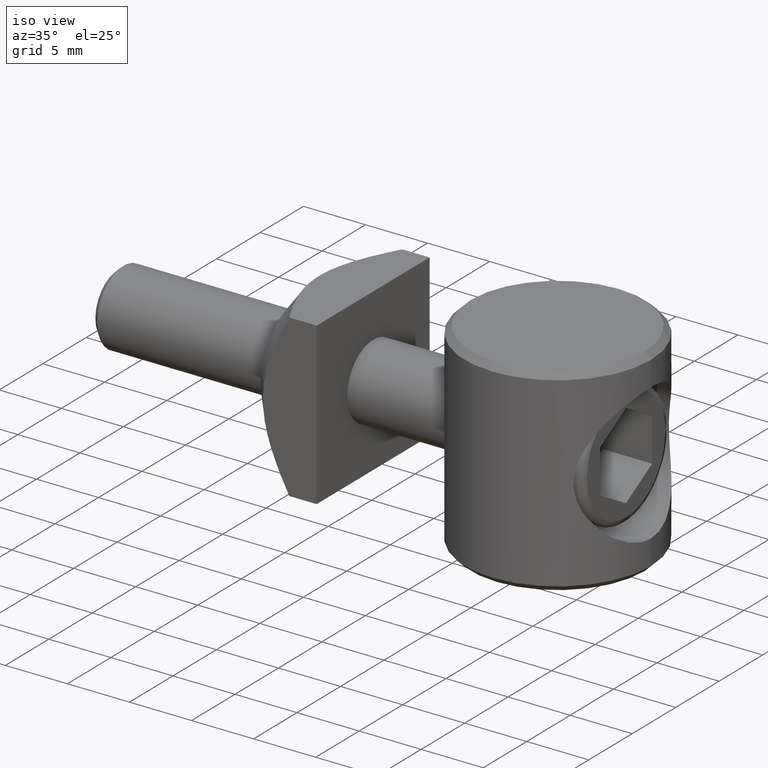
[diagram: clean part render]
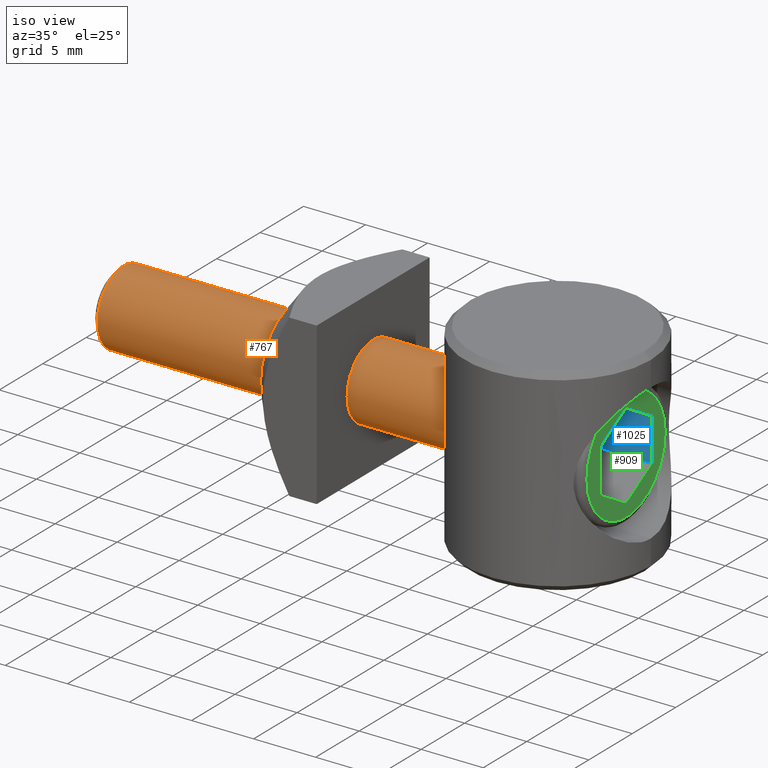
[diagram: same view with three faces highlighted in distinct colors, each labeled with its STEP entity id]
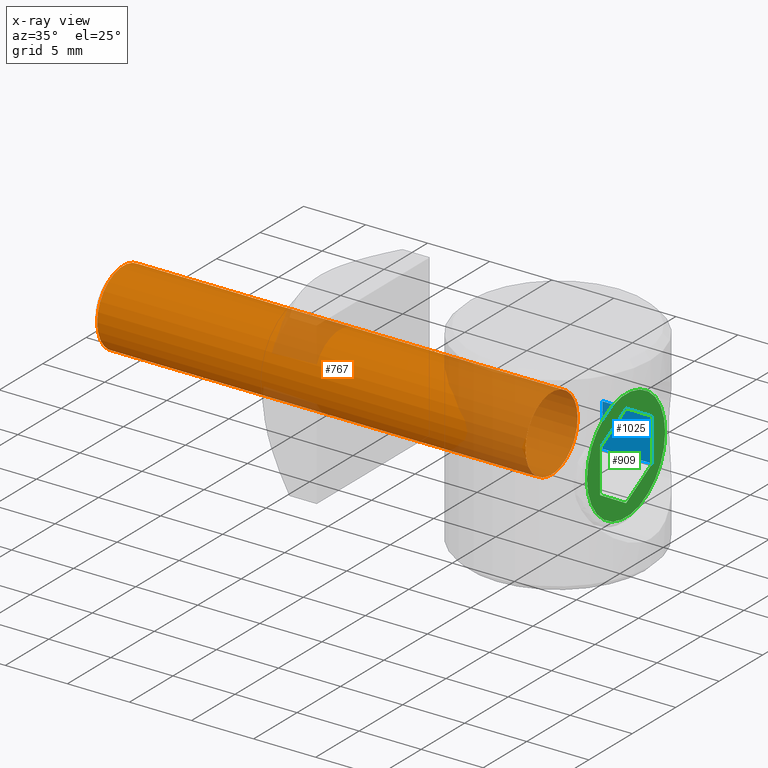
[diagram: x-ray of the same camera — body ghosted, the three highlighted faces saturated]
A machine part, iso view with three faces highlighted in distinct colors.
The next image is the same camera in x-ray (body ghosted, the three faces saturated) — at least one of them is partly hidden behind the body in this view.
Their STEP definitions:

[orange] entity #767 — the highlighted cylindrical surface (bore or boss wall) has radius 3 mm, axis along (1, 0, 0).
#712=CARTESIAN_POINT('',(-0.499999999997726,2.999999999988631,7.999999999968168));
#713=VERTEX_POINT('',#712);
#714=CARTESIAN_POINT('',(-0.499999999997726,-2.999999999987722,7.999999999968168));
#715=VERTEX_POINT('',#714);
#716=CARTESIAN_POINT('',(-0.499999999997726,4.547474E-013,7.999999999968168));
#717=DIRECTION('',(1.0,0.0,0.0));
#718=DIRECTION('',(0.0,1.0,0.0));
#719=AXIS2_PLACEMENT_3D('',#716,#717,#718);
#720=CIRCLE('',#719,2.999999999988177);
#721=EDGE_CURVE('',#713,#715,#720,.T.);
#723=CARTESIAN_POINT('',(-0.499999999997726,4.547474E-013,7.999999999968168));
#724=DIRECTION('',(1.0,0.0,0.0));
#725=DIRECTION('',(0.0,1.0,0.0));
#726=AXIS2_PLACEMENT_3D('',#723,#724,#725);
#727=CIRCLE('',#726,2.999999999988177);
#728=EDGE_CURVE('',#715,#713,#727,.T.);
#733=CARTESIAN_POINT('',(-0.499999999997726,4.547474E-013,7.999999999968168));
#734=DIRECTION('',(1.0,0.0,0.0));
#735=DIRECTION('',(0.0,1.0,0.0));
#736=AXIS2_PLACEMENT_3D('',#733,#734,#735);
#737=CYLINDRICAL_SURFACE('',#736,2.999999999988177);
#738=CARTESIAN_POINT('',(-34.999999999859938,2.999999999988631,7.999999999968168));
#739=VERTEX_POINT('',#738);
#740=CARTESIAN_POINT('',(-0.499999999997726,2.999999999988631,7.999999999968168));
#741=DIRECTION('',(-1.0,0.0,0.0));
#742=VECTOR('',#741,34.499999999862212);
#743=LINE('',#740,#742);
#744=EDGE_CURVE('',#713,#739,#743,.T.);
#745=ORIENTED_EDGE('',*,*,#744,.T.);
#746=CARTESIAN_POINT('',(-34.999999999859938,-2.999999999987722,7.999999999968168));
#747=VERTEX_POINT('',#746);
#748=CARTESIAN_POINT('',(-34.999999999859938,4.547474E-013,7.999999999968168));
#749=DIRECTION('',(1.0,0.0,0.0));
#750=DIRECTION('',(0.0,1.0,0.0));
#751=AXIS2_PLACEMENT_3D('',#748,#749,#750);
#752=CIRCLE('',#751,2.999999999988177);
#753=EDGE_CURVE('',#739,#747,#752,.T.);
#754=ORIENTED_EDGE('',*,*,#753,.T.);
#755=CARTESIAN_POINT('',(-34.999999999859938,4.547474E-013,7.999999999968168));
#756=DIRECTION('',(1.0,0.0,0.0));
#757=DIRECTION('',(0.0,1.0,0.0));
#758=AXIS2_PLACEMENT_3D('',#755,#756,#757);
#759=CIRCLE('',#758,2.999999999988177);
#760=EDGE_CURVE('',#747,#739,#759,.T.);
#761=ORIENTED_EDGE('',*,*,#760,.T.);
#762=ORIENTED_EDGE('',*,*,#744,.F.);
#763=ORIENTED_EDGE('',*,*,#728,.F.);
#764=ORIENTED_EDGE('',*,*,#721,.F.);
#765=EDGE_LOOP('',(#745,#754,#761,#762,#763,#764));
#766=FACE_OUTER_BOUND('',#765,.T.);
#767=ADVANCED_FACE('',(#766),#737,.T.);

[blue] entity #1025 — the highlighted planar face has unit normal (0, -1, 0).
#859=CARTESIAN_POINT('',(5.499999999978172,3.000000000000455,6.267949192399291));
#860=VERTEX_POINT('',#859);
#861=CARTESIAN_POINT('',(5.499999999978172,3.000000000000455,9.732050807537044));
#862=VERTEX_POINT('',#861);
#863=CARTESIAN_POINT('',(5.499999999978172,3.000000000000455,6.267949192399291));
#864=DIRECTION('',(0.0,0.0,1.0));
#865=VECTOR('',#864,3.464101615137754);
#866=LINE('',#863,#865);
#867=EDGE_CURVE('',#860,#862,#866,.T.);
#995=CARTESIAN_POINT('',(5.499999999978172,3.000000000000455,6.267949192399291));
#996=DIRECTION('',(0.0,-1.0,0.0));
#997=DIRECTION('',(0.0,0.0,1.0));
#998=AXIS2_PLACEMENT_3D('',#995,#996,#997);
#999=PLANE('',#998);
#1000=CARTESIAN_POINT('',(1.499999999978172,3.000000000000455,6.267949192399291));
#1001=VERTEX_POINT('',#1000);
#1002=CARTESIAN_POINT('',(5.499999999978172,3.000000000000455,6.267949192399291));
#1003=DIRECTION('',(-1.0,0.0,0.0));
#1004=VECTOR('',#1003,4.0);
#1005=LINE('',#1002,#1004);
#1006=EDGE_CURVE('',#860,#1001,#1005,.T.);
#1007=ORIENTED_EDGE('',*,*,#1006,.F.);
#1008=ORIENTED_EDGE('',*,*,#867,.T.);
#1009=CARTESIAN_POINT('',(1.499999999978172,3.000000000000455,9.732050807537044));
#1010=VERTEX_POINT('',#1009);
#1011=CARTESIAN_POINT('',(5.499999999978172,3.000000000000455,9.732050807537044));
#1012=DIRECTION('',(-1.0,0.0,0.0));
#1013=VECTOR('',#1012,4.0);
#1014=LINE('',#1011,#1013);
#1015=EDGE_CURVE('',#862,#1010,#1014,.T.);
#1016=ORIENTED_EDGE('',*,*,#1015,.T.);
#1017=CARTESIAN_POINT('',(1.499999999978172,3.000000000000455,6.267949192399291));
#1018=DIRECTION('',(0.0,0.0,1.0));
#1019=VECTOR('',#1018,3.464101615137754);
#1020=LINE('',#1017,#1019);
#1021=EDGE_CURVE('',#1001,#1010,#1020,.T.);
#1022=ORIENTED_EDGE('',*,*,#1021,.F.);
#1023=EDGE_LOOP('',(#1007,#1008,#1016,#1022));
#1024=FACE_OUTER_BOUND('',#1023,.T.);
#1025=ADVANCED_FACE('',(#1024),#999,.T.);

[green] entity #909 — the highlighted planar face has unit normal (-1, 0, 0).
#834=CARTESIAN_POINT('',(5.499999999978172,-8.999999999963166,-0.999999999995453));
#835=DIRECTION('',(-1.0,0.0,0.0));
#836=DIRECTION('',(0.0,0.0,1.0));
#837=AXIS2_PLACEMENT_3D('',#834,#835,#836);
#838=PLANE('',#837);
#839=CARTESIAN_POINT('',(5.499999999978172,4.499999999982265,7.999999999968168));
#840=VERTEX_POINT('',#839);
#841=CARTESIAN_POINT('',(5.499999999978172,-4.499999999981355,7.999999999968168));
#842=VERTEX_POINT('',#841);
#843=CARTESIAN_POINT('',(5.499999999978172,4.547474E-013,7.999999999968168));
#844=DIRECTION('',(1.0,0.0,0.0));
#845=DIRECTION('',(0.0,1.0,0.0));
#846=AXIS2_PLACEMENT_3D('',#843,#844,#845);
#847=CIRCLE('',#846,4.499999999981810);
#848=EDGE_CURVE('',#840,#842,#847,.T.);
#849=ORIENTED_EDGE('',*,*,#848,.T.);
#850=CARTESIAN_POINT('',(5.499999999978172,4.547474E-013,7.999999999968168));
#851=DIRECTION('',(1.0,0.0,0.0));
#852=DIRECTION('',(0.0,1.0,0.0));
#853=AXIS2_PLACEMENT_3D('',#850,#851,#852);
#854=CIRCLE('',#853,4.499999999981810);
#855=EDGE_CURVE('',#842,#840,#854,.T.);
#856=ORIENTED_EDGE('',*,*,#855,.T.);
#857=EDGE_LOOP('',(#849,#856));
#858=FACE_OUTER_BOUND('',#857,.T.);
#859=CARTESIAN_POINT('',(5.499999999978172,3.000000000000455,6.267949192399291));
#860=VERTEX_POINT('',#859);
#861=CARTESIAN_POINT('',(5.499999999978172,3.000000000000455,9.732050807537044));
#862=VERTEX_POINT('',#861);
#863=CARTESIAN_POINT('',(5.499999999978172,3.000000000000455,6.267949192399291));
#864=DIRECTION('',(0.0,0.0,1.0));
#865=VECTOR('',#864,3.464101615137754);
#866=LINE('',#863,#865);
#867=EDGE_CURVE('',#860,#862,#866,.T.);
#868=ORIENTED_EDGE('',*,*,#867,.F.);
#869=CARTESIAN_POINT('',(5.499999999978172,4.547474E-013,4.535898384830414));
#870=VERTEX_POINT('',#869);
#871=CARTESIAN_POINT('',(5.499999999978172,4.547474E-013,4.535898384830414));
#872=DIRECTION('',(0.0,0.866025403784439,0.500000000000000));
#873=VECTOR('',#872,3.464101615137754);
#874=LINE('',#871,#873);
#875=EDGE_CURVE('',#870,#860,#874,.T.);
#876=ORIENTED_EDGE('',*,*,#875,.F.);
#877=CARTESIAN_POINT('',(5.499999999978172,-2.999999999999545,6.267949192399293));
#878=VERTEX_POINT('',#877);
#879=CARTESIAN_POINT('',(5.499999999978172,-2.999999999999545,6.267949192399293));
#880=DIRECTION('',(0.0,0.866025403784438,-0.500000000000000));
#881=VECTOR('',#880,3.464101615137756);
#882=LINE('',#879,#881);
#883=EDGE_CURVE('',#878,#870,#882,.T.);
#884=ORIENTED_EDGE('',*,*,#883,.F.);
#885=CARTESIAN_POINT('',(5.499999999978172,-2.999999999999545,9.732050807537046));
#886=VERTEX_POINT('',#885);
#887=CARTESIAN_POINT('',(5.499999999978172,-2.999999999999545,9.732050807537046));
#888=DIRECTION('',(0.0,0.0,-1.0));
#889=VECTOR('',#888,3.464101615137754);
#890=LINE('',#887,#889);
#891=EDGE_CURVE('',#886,#878,#890,.T.);
#892=ORIENTED_EDGE('',*,*,#891,.F.);
#893=CARTESIAN_POINT('',(5.499999999978172,4.547474E-013,11.464101615105921));
#894=VERTEX_POINT('',#893);
#895=CARTESIAN_POINT('',(5.499999999978172,4.547474E-013,11.464101615105921));
#896=DIRECTION('',(0.0,-0.866025403784439,-0.500000000000000));
#897=VECTOR('',#896,3.464101615137754);
#898=LINE('',#895,#897);
#899=EDGE_CURVE('',#894,#886,#898,.T.);
#900=ORIENTED_EDGE('',*,*,#899,.F.);
#901=CARTESIAN_POINT('',(5.499999999978172,3.000000000000455,9.732050807537044));
#902=DIRECTION('',(0.0,-0.866025403784438,0.500000000000000));
#903=VECTOR('',#902,3.464101615137755);
#904=LINE('',#901,#903);
#905=EDGE_CURVE('',#862,#894,#904,.T.);
#906=ORIENTED_EDGE('',*,*,#905,.F.);
#907=EDGE_LOOP('',(#868,#876,#884,#892,#900,#906));
#908=FACE_BOUND('',#907,.T.);
#909=ADVANCED_FACE('',(#858,#908),#838,.F.);